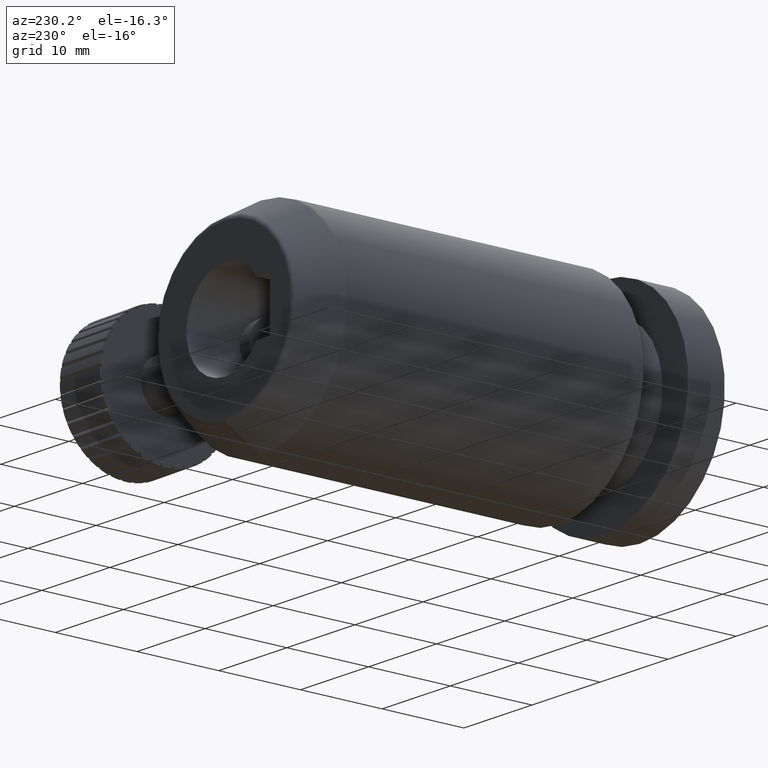
[diagram: clean part render]
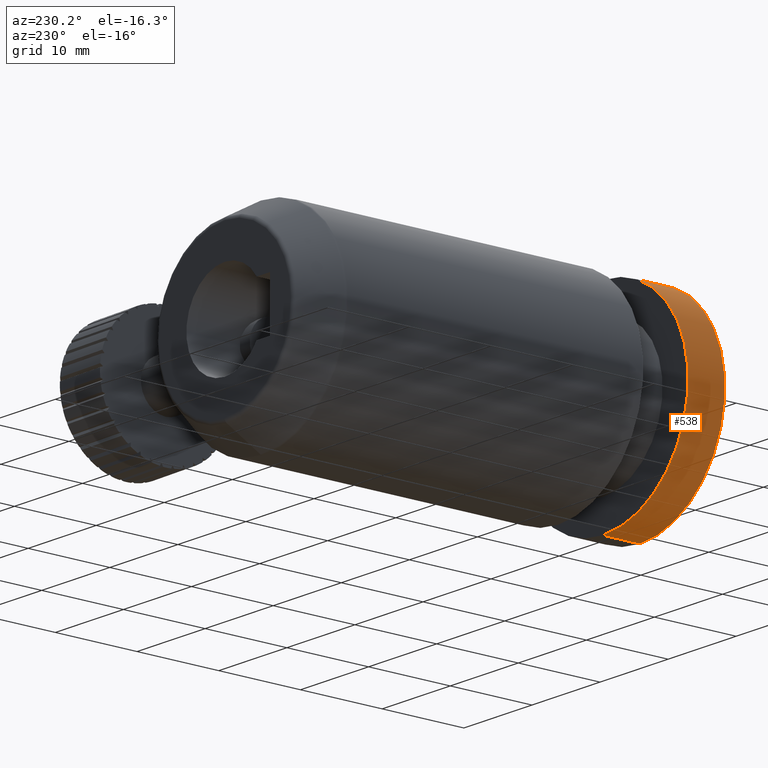
[diagram: same view with one face highlighted and labeled with its STEP entity id]
A machine part, auxiliary view. The second image highlights one B-rep face of the part: STEP entity #538.
In plain terms, the highlighted cylindrical surface (partial cylindrical patch) has radius 12.5 mm, axis along (-0, -1, -0).
Its self-contained STEP definition (entity closure, byte-faithful):
#173 = ORIENTED_EDGE ( 'NONE', *, *, #584, .F. ) ;
#369 = CARTESIAN_POINT ( 'NONE',  ( -5.265086014860968600, -15.48500893580652400, -10.50000000000008000 ) ) ;
#461 = EDGE_CURVE ( 'NONE', #987, #571, #4177, .T. ) ;
#523 = EDGE_CURVE ( 'NONE', #3078, #571, #3540, .T. ) ;
#538 = ADVANCED_FACE ( 'NONE', ( #1976 ), #2999, .T. ) ;
#571 = VERTEX_POINT ( 'NONE', #369 ) ;
#584 = EDGE_CURVE ( 'NONE', #3989, #987, #1832, .T. ) ;
#709 = DIRECTION ( 'NONE',  ( 0.0000000000000000000, 0.0000000000000000000, -1.000000000000000000 ) ) ;
#790 = EDGE_CURVE ( 'NONE', #3989, #3078, #4652, .T. ) ;
#898 = CARTESIAN_POINT ( 'NONE',  ( -5.265086014860968600, -10.98500893580652600, -10.50000000000008000 ) ) ;
#987 = VERTEX_POINT ( 'NONE', #2361 ) ;
#1212 = DIRECTION ( 'NONE',  ( -0.0000000000000000000, -1.000000000000000000, -0.0000000000000000000 ) ) ;
#1239 = EDGE_LOOP ( 'NONE', ( #173, #3415, #4692, #2539 ) ) ;
#1832 = LINE ( 'NONE', #2030, #4997 ) ;
#1976 = FACE_OUTER_BOUND ( 'NONE', #1239, .T. ) ;
#2030 = CARTESIAN_POINT ( 'NONE',  ( -5.265086014860966800, -21.01514838293971400, 14.50000000000008000 ) ) ;
#2062 = CARTESIAN_POINT ( 'NONE',  ( -5.265086014860966800, -10.98500893580652600, 14.50000000000008000 ) ) ;
#2361 = CARTESIAN_POINT ( 'NONE',  ( -5.265086014860966800, -15.48500893580652400, 14.50000000000008000 ) ) ;
#2539 = ORIENTED_EDGE ( 'NONE', *, *, #461, .F. ) ;
#2632 = CARTESIAN_POINT ( 'NONE',  ( -5.265086014860968600, -10.98500893580652600, 2.000000000000000000 ) ) ;
#2764 = AXIS2_PLACEMENT_3D ( 'NONE', #4126, #3275, #3298 ) ;
#2941 = VECTOR ( 'NONE', #5004, 1000.000000000000000 ) ;
#2999 = CYLINDRICAL_SURFACE ( 'NONE', #4530, 12.50000000000008000 ) ;
#3078 = VERTEX_POINT ( 'NONE', #898 ) ;
#3115 = DIRECTION ( 'NONE',  ( 0.0000000000000000000, 0.0000000000000000000, -1.000000000000000000 ) ) ;
#3130 = DIRECTION ( 'NONE',  ( -0.0000000000000000000, -1.000000000000000000, -0.0000000000000000000 ) ) ;
#3275 = DIRECTION ( 'NONE',  ( -0.0000000000000000000, -1.000000000000000000, -0.0000000000000000000 ) ) ;
#3298 = DIRECTION ( 'NONE',  ( 0.0000000000000000000, 0.0000000000000000000, -1.000000000000000000 ) ) ;
#3323 = DIRECTION ( 'NONE',  ( -0.0000000000000000000, -1.000000000000000000, -0.0000000000000000000 ) ) ;
#3415 = ORIENTED_EDGE ( 'NONE', *, *, #790, .T. ) ;
#3540 = LINE ( 'NONE', #4599, #2941 ) ;
#3989 = VERTEX_POINT ( 'NONE', #2062 ) ;
#4126 = CARTESIAN_POINT ( 'NONE',  ( -5.265086014860968600, -15.48500893580652400, 2.000000000000000000 ) ) ;
#4177 = CIRCLE ( 'NONE', #2764, 12.50000000000008000 ) ;
#4411 = AXIS2_PLACEMENT_3D ( 'NONE', #2632, #3130, #3115 ) ;
#4530 = AXIS2_PLACEMENT_3D ( 'NONE', #5488, #3323, #709 ) ;
#4599 = CARTESIAN_POINT ( 'NONE',  ( -5.265086014860968600, -21.01514838293971400, -10.50000000000008000 ) ) ;
#4652 = CIRCLE ( 'NONE', #4411, 12.50000000000008000 ) ;
#4692 = ORIENTED_EDGE ( 'NONE', *, *, #523, .T. ) ;
#4997 = VECTOR ( 'NONE', #1212, 1000.000000000000000 ) ;
#5004 = DIRECTION ( 'NONE',  ( -0.0000000000000000000, -1.000000000000000000, -0.0000000000000000000 ) ) ;
#5488 = CARTESIAN_POINT ( 'NONE',  ( -5.265086014860968600, -21.01514838293971400, 2.000000000000000000 ) ) ;